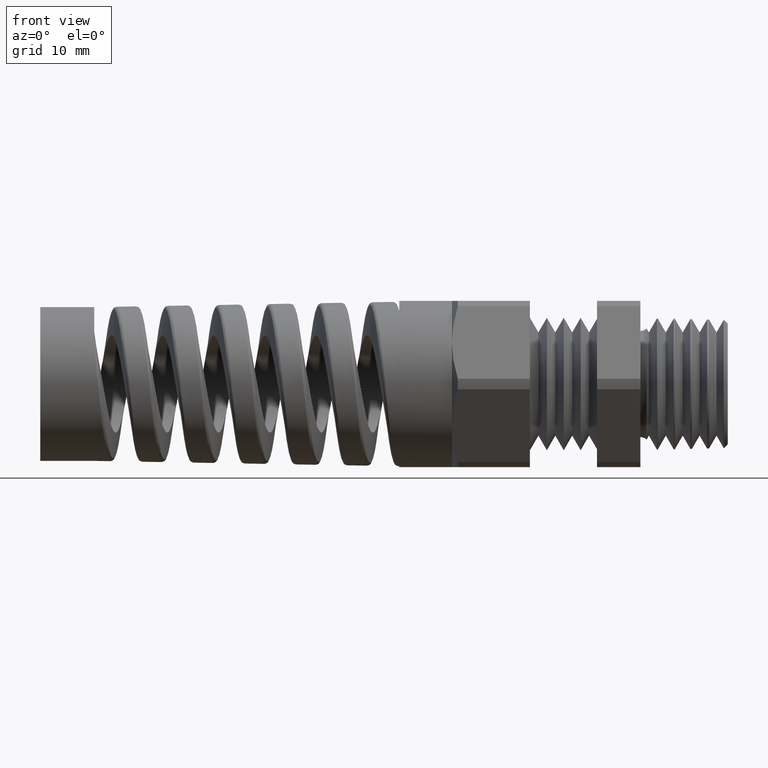
[diagram: clean part render]
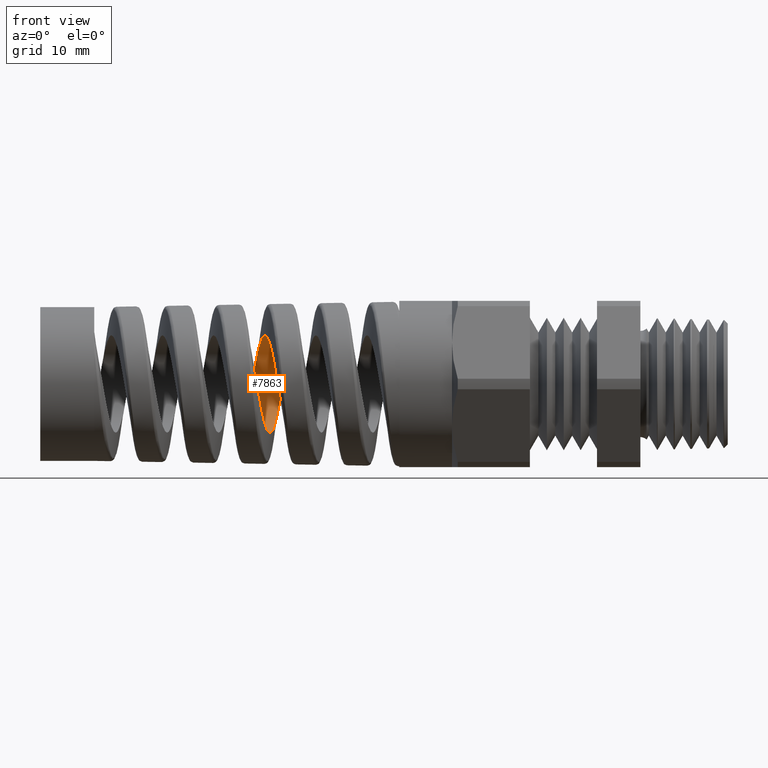
[diagram: same view with one face highlighted and labeled with its STEP entity id]
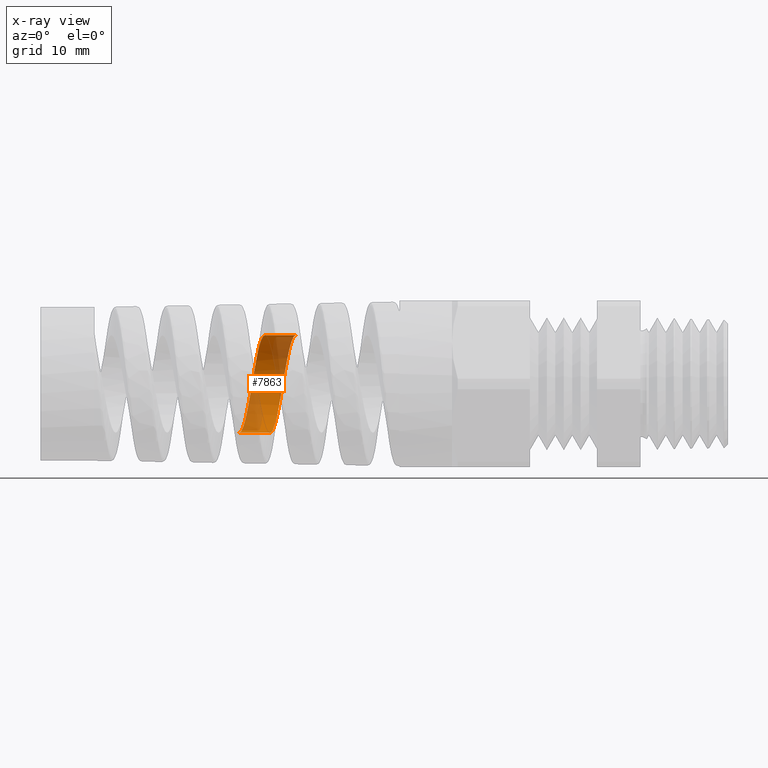
[diagram: x-ray of the same camera — body ghosted, the highlighted face saturated]
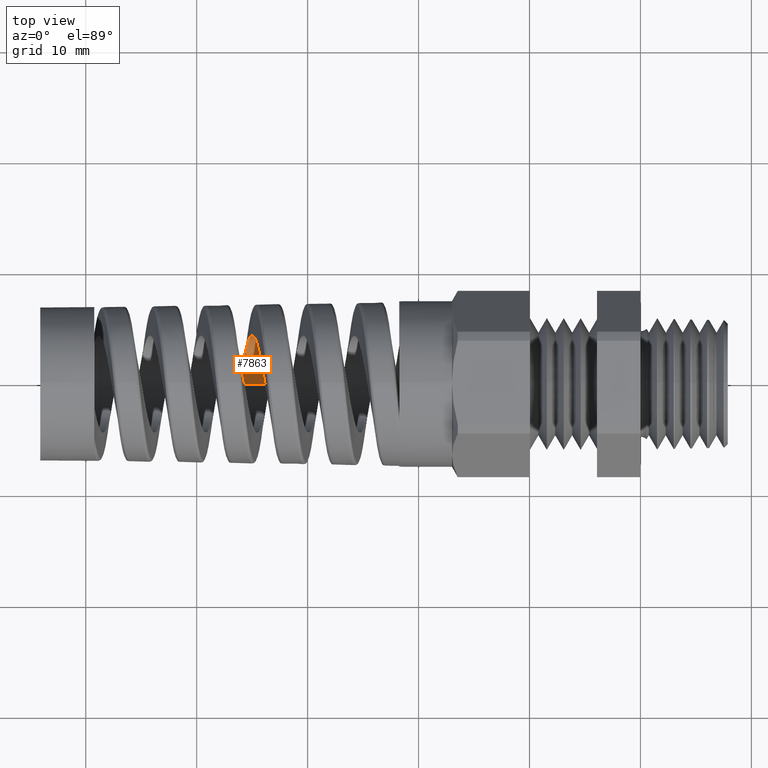
[diagram: same view with one face highlighted and labeled with its STEP entity id]
A machine part, front view. The second image highlights one B-rep face of the part: STEP entity #7863.
The next image is the same camera in x-ray: the body ghosted, the highlighted face saturated — about 42% of this face is hidden behind the body in this view.
A second angle (top view) of the same face is appended — the face is thin or edge-on in the first view.
In plain terms, the highlighted cylindrical surface (partial cylindrical patch) has radius 4.3901 mm, axis along (1, 0, 0).
Its self-contained STEP definition (entity closure, byte-faithful):
#1606 = CARTESIAN_POINT ( 'NONE',  ( -1.223333382953141900, -4.130852962294673200E-015, 0.1728399223203811700 ) ) ;
#1608 = LINE ( 'NONE', #1638, #1637 ) ;
#1636 = DIRECTION ( 'NONE',  ( 1.000000000000000000, 0.0000000000000000000, 0.0000000000000000000 ) ) ;
#1637 = VECTOR ( 'NONE', #1636, 39.37007874015748100 ) ;
#1638 = CARTESIAN_POINT ( 'NONE',  ( 0.4924815508901369000, 2.116678576345319000E-017, 0.1728399223203811500 ) ) ;
#4019 = CARTESIAN_POINT ( 'NONE',  ( -1.314614142568511600, 1.115489301909817800E-012, -0.1728399223203811200 ) ) ;
#4021 = LINE ( 'NONE', #4056, #4055 ) ;
#4031 = CARTESIAN_POINT ( 'NONE',  ( -1.423634318020068600, -5.766995142312611300E-013, -0.1728399223203811700 ) ) ;
#4045 = CARTESIAN_POINT ( 'NONE',  ( -1.332917920217436400, -8.844357879488047800E-015, 0.1728399223203809800 ) ) ;
#4054 = DIRECTION ( 'NONE',  ( 1.000000000000000000, 0.0000000000000000000, 0.0000000000000000000 ) ) ;
#4055 = VECTOR ( 'NONE', #4054, 39.37007874015748100 ) ;
#4056 = CARTESIAN_POINT ( 'NONE',  ( 0.4924815508901369000, 0.0000000000000000000, -0.1728399223203811500 ) ) ;
#4259 = CYLINDRICAL_SURFACE ( 'NONE', #4304, 0.1728399223203811500 ) ;
#4260 = FACE_OUTER_BOUND ( 'NONE', #7864, .T. ) ;
#4280 = CARTESIAN_POINT ( 'NONE',  ( -1.370722383926940500, 0.1673210956994855000, 0.04477001909646967400 ) ) ;
#4281 = CARTESIAN_POINT ( 'NONE',  ( -1.374489780770079300, 0.1717186593535386900, 0.02265845771004641400 ) ) ;
#4282 = CARTESIAN_POINT ( 'NONE',  ( -1.376404756476447700, 0.1728462365793846900, 0.01121291053541186700 ) ) ;
#4283 = CARTESIAN_POINT ( 'NONE',  ( -1.380186204689932000, 0.1728335537230112400, -0.01140673352922680700 ) ) ;
#4284 = CARTESIAN_POINT ( 'NONE',  ( -1.382057101442220700, 0.1717273641075898700, -0.02261318677531497900 ) ) ;
#4285 = CARTESIAN_POINT ( 'NONE',  ( -1.385834738272146800, 0.1673141368432627400, -0.04480651082008028900 ) ) ;
#4286 = CARTESIAN_POINT ( 'NONE',  ( -1.387745109165893900, 0.1639702136238462800, -0.05580710869247210200 ) ) ;
#4287 = CARTESIAN_POINT ( 'NONE',  ( -1.391511731270374600, 0.1553343488329238200, -0.07662835251468437500 ) ) ;
#4288 = CARTESIAN_POINT ( 'NONE',  ( -1.393388748395274900, 0.1500263782833603800, -0.08657550660865316600 ) ) ;
#4289 = CARTESIAN_POINT ( 'NONE',  ( -1.397195252404589900, 0.1373751956900490500, -0.1055049199539415700 ) ) ;
#4290 = CARTESIAN_POINT ( 'NONE',  ( -1.399085052557987200, 0.1301487271041213400, -0.1142879031089643900 ) ) ;
#4291 = CARTESIAN_POINT ( 'NONE',  ( -1.402844556057369700, 0.1142212590569723200, -0.1302072192441997800 ) ) ;
#4292 = CARTESIAN_POINT ( 'NONE',  ( -1.404739617506330000, 0.1054078591382846700, -0.1374484023858222600 ) ) ;
#4293 = CARTESIAN_POINT ( 'NONE',  ( -1.408538743406185800, 0.08649646709891029000, -0.1500707875168864600 ) ) ;
#4294 = CARTESIAN_POINT ( 'NONE',  ( -1.410414855402708500, 0.07655149510118020000, -0.1553726113843047200 ) ) ;
#4295 = CARTESIAN_POINT ( 'NONE',  ( -1.414185391339638500, 0.05571625830998811600, -0.1640014583183298200 ) ) ;
#4296 = CARTESIAN_POINT ( 'NONE',  ( -1.416097724095308500, 0.04470397270763053900, -0.1673408835112927300 ) ) ;
#4297 = CARTESIAN_POINT ( 'NONE',  ( -1.419872070478589200, 0.02252792559224042800, -0.1717379079839249100 ) ) ;
#4298 = CARTESIAN_POINT ( 'NONE',  ( -1.421742838687377400, 0.01132071641031652500, -0.1728399223204188400 ) ) ;
#4299 = CARTESIAN_POINT ( 'NONE',  ( -1.423634318020068600, -5.766995142312611300E-013, -0.1728399223203811700 ) ) ;
#4300 = B_SPLINE_CURVE_WITH_KNOTS ( 'NONE', 3,
 ( #4299, #4298, #4297, #4296, #4295, #4294, #4293, #4292, #4291, #4290, #4289, #4288, #4287, #4286, #4285, #4284, #4283, #4282, #4281, #4280, #4360, #4359, #4358, #4357, #4356, #4355, #4354, #4353, #4352, #4351, #4350, #4349 ),
 .UNSPECIFIED., .F., .F.,
 ( 4, 2, 2, 2, 2, 2, 2, 2, 2, 2, 2, 2, 2, 2, 2, 4 ),
 ( 0.07914135747883950500, 0.08001329081656992400, 0.08088522415430035600, 0.08175715749203077400, 0.08262909082976120600, 0.08350102416749162500, 0.08437295750522205700, 0.08524489084295247500, 0.08611682418068289400, 0.08698875751841332600, 0.08786069085614374400, 0.08960455753160459500, 0.09047649086933501300, 0.09134842420706544600, 0.09222035754479587800, 0.09309229088252629600 ),
 .UNSPECIFIED. ) ;
#4301 = DIRECTION ( 'NONE',  ( 0.0000000000000000000, 0.0000000000000000000, -1.000000000000000000 ) ) ;
#4302 = DIRECTION ( 'NONE',  ( 1.000000000000000000, 0.0000000000000000000, 0.0000000000000000000 ) ) ;
#4303 = CARTESIAN_POINT ( 'NONE',  ( 0.4924815508901369000, 0.0000000000000000000, 0.0000000000000000000 ) ) ;
#4304 = AXIS2_PLACEMENT_3D ( 'NONE', #4303, #4302, #4301 ) ;
#4317 = CARTESIAN_POINT ( 'NONE',  ( -1.301284307426781000, 0.07671540744268190400, -0.1553014517554864000 ) ) ;
#4318 = CARTESIAN_POINT ( 'NONE',  ( -1.299389370409350400, 0.08668443843371061200, -0.1499540553162749300 ) ) ;
#4319 = CARTESIAN_POINT ( 'NONE',  ( -1.295600454021516000, 0.1054061763192696800, -0.1374407092753643400 ) ) ;
#4320 = CARTESIAN_POINT ( 'NONE',  ( -1.293686423954557600, 0.1142573930851874000, -0.1301829563426693500 ) ) ;
#4321 = CARTESIAN_POINT ( 'NONE',  ( -1.289875035626512500, 0.1302942158036375600, -0.1141305012906519600 ) ) ;
#4322 = CARTESIAN_POINT ( 'NONE',  ( -1.287992503436311800, 0.1374333112263875500, -0.1054184812622967100 ) ) ;
#4323 = CARTESIAN_POINT ( 'NONE',  ( -1.284198550293018900, 0.1499731541615637000, -0.08665462628809934800 ) ) ;
#4324 = CARTESIAN_POINT ( 'NONE',  ( -1.282270169183360500, 0.1553983595442894600, -0.07650110306389325300 ) ) ;
#4325 = CARTESIAN_POINT ( 'NONE',  ( -1.278471271319999700, 0.1640286581653946900, -0.05563872949222333600 ) ) ;
#4326 = CARTESIAN_POINT ( 'NONE',  ( -1.276588030589308900, 0.1673006505944901200, -0.04486275175656562200 ) ) ;
#4327 = CARTESIAN_POINT ( 'NONE',  ( -1.272779237606031800, 0.1717274345280432900, -0.02262437656439450500 ) ) ;
#4328 = CARTESIAN_POINT ( 'NONE',  ( -1.270863759740427800, 0.1728426772454368900, -0.01121862807032329000 ) ) ;
#4329 = CARTESIAN_POINT ( 'NONE',  ( -1.267077803507354200, 0.1728371570117797100, 0.01130335566263085100 ) ) ;
#4330 = CARTESIAN_POINT ( 'NONE',  ( -1.265187528256139100, 0.1717443355435091500, 0.02253710842731315000 ) ) ;
#4331 = CARTESIAN_POINT ( 'NONE',  ( -1.261344485199643400, 0.1672864763483600000, 0.04493632025984670800 ) ) ;
#4332 = CARTESIAN_POINT ( 'NONE',  ( -1.259456824698553100, 0.1639947816542238500, 0.05573297800349198700 ) ) ;
#4333 = CARTESIAN_POINT ( 'NONE',  ( -1.255673543496223000, 0.1553765991392548100, 0.07654126786821344200 ) ) ;
#4334 = CARTESIAN_POINT ( 'NONE',  ( -1.253758150823947900, 0.1499793564701637800, 0.08665081160344007000 ) ) ;
#4335 = CARTESIAN_POINT ( 'NONE',  ( -1.249946788482224800, 0.1373755378764511800, 0.1054994412871227000 ) ) ;
#4336 = CARTESIAN_POINT ( 'NONE',  ( -1.248060859403347100, 0.1302273095555573600, 0.1142012080681950700 ) ) ;
#4337 = CARTESIAN_POINT ( 'NONE',  ( -1.244261723480303300, 0.1142670535728286900, 0.1301695377040974500 ) ) ;
#4338 = CARTESIAN_POINT ( 'NONE',  ( -1.242335889465886000, 0.1053674029378299900, 0.1374724966023787900 ) ) ;
#4339 = CARTESIAN_POINT ( 'NONE',  ( -1.238544725393863500, 0.08659845033103595600, 0.1500056176421976400 ) ) ;
#4340 = CARTESIAN_POINT ( 'NONE',  ( -1.236662388946595700, 0.07666769193917857800, 0.1553203572879813300 ) ) ;
#4341 = CARTESIAN_POINT ( 'NONE',  ( -1.232848620491431700, 0.05570723643096216900, 0.1640093051767851600 ) ) ;
#4342 = CARTESIAN_POINT ( 'NONE',  ( -1.230931807903014700, 0.04475205460795658000, 0.1673250233407626000 ) ) ;
#4343 = CARTESIAN_POINT ( 'NONE',  ( -1.227142424430007300, 0.02266593964773323100, 0.1717168163212490200 ) ) ;
#4344 = CARTESIAN_POINT ( 'NONE',  ( -1.225249925155885700, 0.01140890156933271400, 0.1728399223203813700 ) ) ;
#4345 = CARTESIAN_POINT ( 'NONE',  ( -1.223333382953141900, -4.130852962294673200E-015, 0.1728399223203811700 ) ) ;
#4347 = B_SPLINE_CURVE_WITH_KNOTS ( 'NONE', 3,
 ( #4345, #4344, #4343, #4342, #4341, #4340, #4339, #4338, #4337, #4336, #4335, #4334, #4333, #4332, #4331, #4330, #4329, #4328, #4327, #4326, #4325, #4324, #4323, #4322, #4321, #4320, #4319, #4318, #4317, #4399, #4398, #4397, #4396, #4395 ),
 .UNSPECIFIED., .F., .F.,
 ( 4, 2, 2, 2, 2, 2, 2, 2, 2, 2, 2, 2, 2, 2, 2, 2, 4 ),
 ( 0.05757797534722560600, 0.05844783141309454300, 0.05931768747896348800, 0.06018754354483242500, 0.06105739961070136300, 0.06192725567657030000, 0.06279711174243923800, 0.06366696780830817500, 0.06453682387417711300, 0.06540667994004605000, 0.06627653600591498800, 0.06714639207178392500, 0.06801624813765286300, 0.06888610420352180000, 0.06975596026939073800, 0.07062581633525967500, 0.07149567240112861300 ),
 .UNSPECIFIED. ) ;
#4349 = CARTESIAN_POINT ( 'NONE',  ( -1.332917920217436400, -8.844357879488047800E-015, 0.1728399223203809800 ) ) ;
#4350 = CARTESIAN_POINT ( 'NONE',  ( -1.334799305768880500, 0.01126948544005006700, 0.1728399223203817300 ) ) ;
#4351 = CARTESIAN_POINT ( 'NONE',  ( -1.336709325648498500, 0.02270817821762747800, 0.1717150120485445600 ) ) ;
#4352 = CARTESIAN_POINT ( 'NONE',  ( -1.340491987803212000, 0.04490444062812755400, 0.1672880687098464200 ) ) ;
#4353 = CARTESIAN_POINT ( 'NONE',  ( -1.342366955445026600, 0.05567897964317639800, 0.1640162725428061200 ) ) ;
#4354 = CARTESIAN_POINT ( 'NONE',  ( -1.346146857334474600, 0.07657247977157291600, 0.1553645447796032600 ) ) ;
#4355 = CARTESIAN_POINT ( 'NONE',  ( -1.348058243695921000, 0.08671614202316455000, 0.1499368384550821000 ) ) ;
#4356 = CARTESIAN_POINT ( 'NONE',  ( -1.351822563991259100, 0.1054588636667809400, 0.1374015024932345200 ) ) ;
#4357 = CARTESIAN_POINT ( 'NONE',  ( -1.353695441422860600, 0.1141768741291628200, 0.1302560708587763000 ) ) ;
#4358 = CARTESIAN_POINT ( 'NONE',  ( -1.359397737934494600, 0.1383038205673904100, 0.1061279760440662900 ) ) ;
#4359 = CARTESIAN_POINT ( 'NONE',  ( -1.363150495073707700, 0.1510108214176003600, 0.08710492595871897900 ) ) ;
#4360 = CARTESIAN_POINT ( 'NONE',  ( -1.368849348996146400, 0.1640609370711449400, 0.05556187601222086600 ) ) ;
#4395 = CARTESIAN_POINT ( 'NONE',  ( -1.314614142568511600, 1.115489301909817800E-012, -0.1728399223203811200 ) ) ;
#4396 = CARTESIAN_POINT ( 'NONE',  ( -1.312707992509248200, 0.01132935354529000100, -0.1728399223203080600 ) ) ;
#4397 = CARTESIAN_POINT ( 'NONE',  ( -1.310789855046969700, 0.02274525592862069700, -0.1717065716197992100 ) ) ;
#4398 = CARTESIAN_POINT ( 'NONE',  ( -1.307006163148597000, 0.04483652510768619500, -0.1673026581407227300 ) ) ;
#4399 = CARTESIAN_POINT ( 'NONE',  ( -1.305120323027112200, 0.05563689799447446600, -0.1640375878815913700 ) ) ;
#7660 = VERTEX_POINT ( 'NONE', #1606 ) ;
#7661 = EDGE_CURVE ( 'NONE', #7842, #7660, #1608, .T. ) ;
#7829 = VERTEX_POINT ( 'NONE', #4031 ) ;
#7835 = VERTEX_POINT ( 'NONE', #4019 ) ;
#7837 = EDGE_CURVE ( 'NONE', #7829, #7835, #4021, .T. ) ;
#7842 = VERTEX_POINT ( 'NONE', #4045 ) ;
#7863 = ADVANCED_FACE ( 'NONE', ( #4260 ), #4259, .F. ) ;
#7864 = EDGE_LOOP ( 'NONE', ( #7865, #7866, #7868, #7869 ) ) ;
#7865 = ORIENTED_EDGE ( 'NONE', *, *, #7661, .F. ) ;
#7866 = ORIENTED_EDGE ( 'NONE', *, *, #7867, .F. ) ;
#7867 = EDGE_CURVE ( 'NONE', #7829, #7842, #4300, .T. ) ;
#7868 = ORIENTED_EDGE ( 'NONE', *, *, #7837, .T. ) ;
#7869 = ORIENTED_EDGE ( 'NONE', *, *, #7870, .F. ) ;
#7870 = EDGE_CURVE ( 'NONE', #7660, #7835, #4347, .T. ) ;